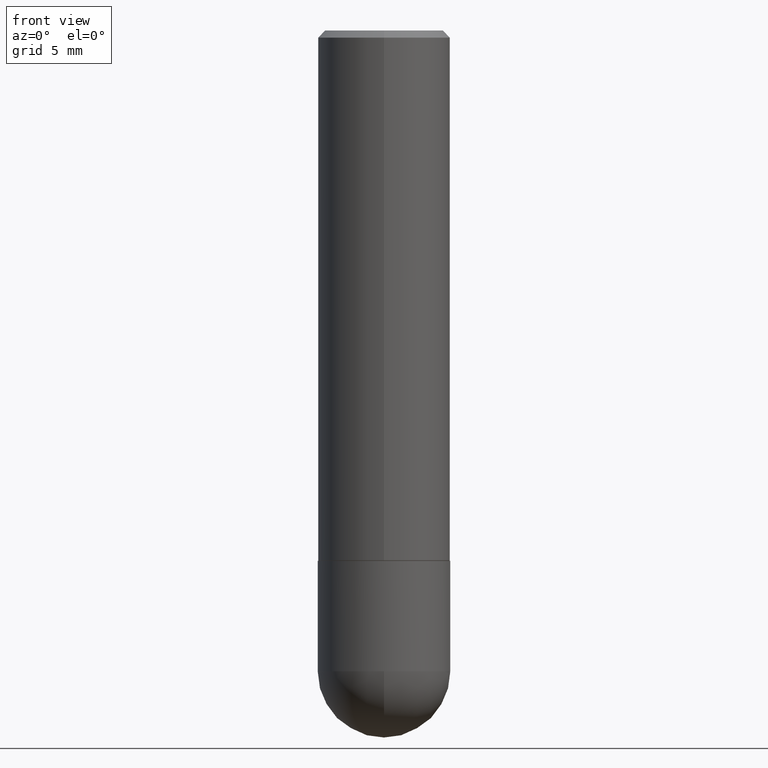
[diagram: clean part render]
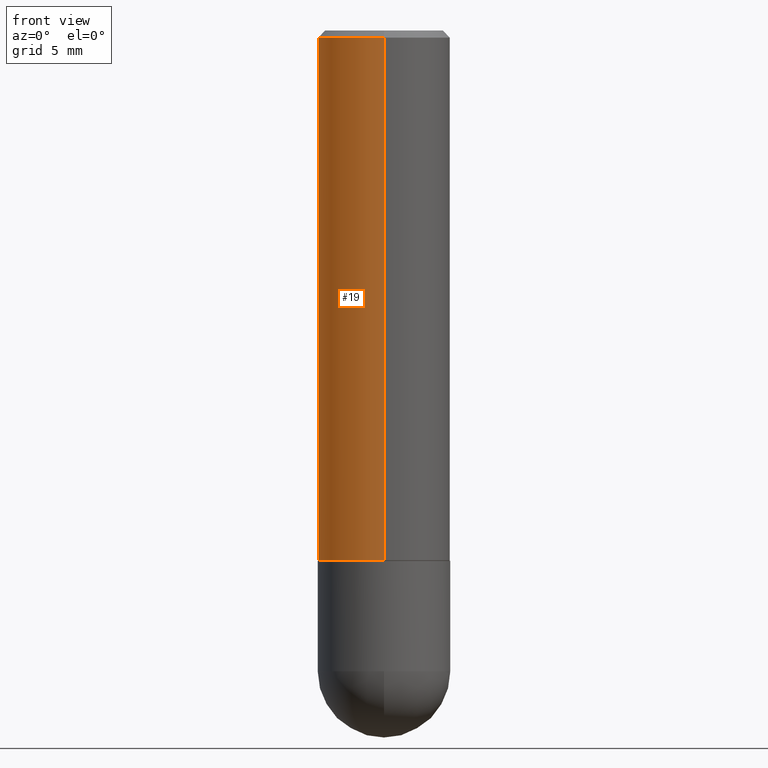
[diagram: same view with one face highlighted and labeled with its STEP entity id]
A machine part, front view. The second image highlights one B-rep face of the part: STEP entity #19.
In plain terms, the highlighted cylindrical surface (partial cylindrical patch) has radius 4.7625 mm, axis along (-0, 0, 1).
Its self-contained STEP definition (entity closure, byte-faithful):
#7 = LINE ( 'NONE', #353, #118 ) ;
#15 = ORIENTED_EDGE ( 'NONE', *, *, #34, .T. ) ;
#17 = DIRECTION ( 'NONE',  ( -2.444237772899634714E-29, 3.493244248574047893E-15, 1.000000000000000000 ) ) ;
#19 = ADVANCED_FACE ( 'NONE', ( #301 ), #117, .T. ) ;
#34 = EDGE_CURVE ( 'NONE', #236, #77, #199, .T. ) ;
#37 = CARTESIAN_POINT ( 'NONE',  ( 4.888475545799278045E-31, -6.986488497148108654E-17, -0.02000000000000003858 ) ) ;
#47 = CIRCLE ( 'NONE', #89, 0.1875000000000001388 ) ;
#69 = DIRECTION ( 'NONE',  ( -2.444237772899634994E-29, 3.493244248574047893E-15, 1.000000000000000000 ) ) ;
#77 = VERTEX_POINT ( 'NONE', #332 ) ;
#83 = VERTEX_POINT ( 'NONE', #167 ) ;
#85 = DIRECTION ( 'NONE',  ( -2.444237772899634994E-29, 3.493244248574047893E-15, 1.000000000000000000 ) ) ;
#86 = ORIENTED_EDGE ( 'NONE', *, *, #284, .F. ) ;
#89 = AXIS2_PLACEMENT_3D ( 'NONE', #395, #228, #193 ) ;
#95 = AXIS2_PLACEMENT_3D ( 'NONE', #240, #17, #140 ) ;
#98 = CARTESIAN_POINT ( 'NONE',  ( 1.332267629550207176E-15, 0.1874999999999949207, -1.499000000000000554 ) ) ;
#110 = VECTOR ( 'NONE', #85, 39.37007874015748143 ) ;
#114 = EDGE_LOOP ( 'NONE', ( #86, #137, #15, #253 ) ) ;
#117 = CYLINDRICAL_SURFACE ( 'NONE', #95, 0.1875000000000000555 ) ;
#118 = VECTOR ( 'NONE', #69, 39.37007874015748143 ) ;
#129 = DIRECTION ( 'NONE',  ( -2.444237772899634714E-29, 3.493244248574047893E-15, 1.000000000000000000 ) ) ;
#135 = CARTESIAN_POINT ( 'NONE',  ( -1.309305502066175205E-15, -0.1875000000000000555, 6.549832966076341771E-16 ) ) ;
#137 = ORIENTED_EDGE ( 'NONE', *, *, #182, .T. ) ;
#140 = DIRECTION ( 'NONE',  ( -6.982962677686265922E-15, -1.000000000000000000, 3.493244248574047893E-15 ) ) ;
#167 = CARTESIAN_POINT ( 'NONE',  ( 1.309305502066175205E-15, 0.1874999999999999167, -0.02000000000000069084 ) ) ;
#168 = CIRCLE ( 'NONE', #408, 0.1874999999999999722 ) ;
#182 = EDGE_CURVE ( 'NONE', #273, #236, #47, .T. ) ;
#193 = DIRECTION ( 'NONE',  ( -6.982962677686266711E-15, -1.000000000000000000, 2.913971193241878794E-15 ) ) ;
#199 = LINE ( 'NONE', #135, #110 ) ;
#228 = DIRECTION ( 'NONE',  ( -2.444237772899634714E-29, 3.493244248574047893E-15, 1.000000000000000000 ) ) ;
#236 = VERTEX_POINT ( 'NONE', #403 ) ;
#240 = CARTESIAN_POINT ( 'NONE',  ( 0.000000000000000000, 0.000000000000000000, 0.000000000000000000 ) ) ;
#248 = DIRECTION ( 'NONE',  ( -6.982962677686266711E-15, -1.000000000000000000, 3.483106191921935949E-15 ) ) ;
#253 = ORIENTED_EDGE ( 'NONE', *, *, #298, .F. ) ;
#273 = VERTEX_POINT ( 'NONE', #98 ) ;
#284 = EDGE_CURVE ( 'NONE', #273, #83, #7, .T. ) ;
#298 = EDGE_CURVE ( 'NONE', #83, #77, #168, .T. ) ;
#301 = FACE_OUTER_BOUND ( 'NONE', #114, .T. ) ;
#332 = CARTESIAN_POINT ( 'NONE',  ( -1.286343374582161379E-15, -0.1875000000000000555, -0.01999999999999938632 ) ) ;
#353 = CARTESIAN_POINT ( 'NONE',  ( 1.332267629550188046E-15, 0.1875000000000000555, -6.549832966076341771E-16 ) ) ;
#395 = CARTESIAN_POINT ( 'NONE',  ( 3.663912421576552546E-29, -5.236373128612498345E-15, -1.499000000000000110 ) ) ;
#403 = CARTESIAN_POINT ( 'NONE',  ( -1.309305502066139312E-15, -0.1875000000000053846, -1.498999999999999444 ) ) ;
#408 = AXIS2_PLACEMENT_3D ( 'NONE', #37, #129, #248 ) ;